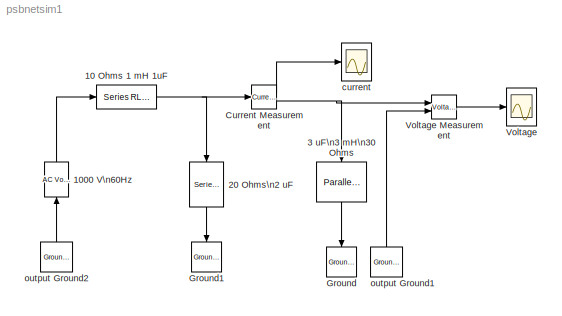
MODEL psbnetsim1
KIND model
BLOCK [Reference] 10 Ohms 1 mH 1uF  REF=powerlib2/Elements/Series RLC Branch
  PSBOutputType = 1
  Ports = [1, 1]
  SourceBlock = powerlib2/Elements/Series RLC Branch
  SourceType = Series RLC Branch
  Tag = PoWeRsYsTeMbLoCk
  a = 10
  b = 1e-03
  c = 1e-06
  mesure = None
BLOCK [Reference] 1000 V\n60Hz  REF=powerlib2/Electrical\nSources/AC Voltage Source
  A = 1000
  Description = source block
  F = 60
  P = 0
  PSBOutputType = 1
  Ports = [1, 1]
  SourceBlock = powerlib2/Electrical\nSources/AC Voltage Source
  SourceType = AC Voltage Source
  Tag = PoWeRsYsTeMbLoCk
  mesure = None
  stime = 0
BLOCK [Reference] 20 Ohms\n2 uF  REF=powerlib2/Elements/Series RLC Branch
  PSBOutputType = 1
  Ports = [1, 1]
  SourceBlock = powerlib2/Elements/Series RLC Branch
  SourceType = Series RLC Branch
  Tag = PoWeRsYsTeMbLoCk
  a = 20
  b = 0
  c = 2e-06
  mesure = None
BLOCK [Reference] 3 uF\n3 mH\n30 Ohms  REF=powerlib2/Elements/Parallel RLC Branch
  PSBOutputType = 1
  Ports = [1, 1]
  SourceBlock = powerlib2/Elements/Parallel RLC Branch
  SourceType = Parallel RLC Branch
  Tag = PoWeRsYsTeMbLoCk
  a = 30
  b = 3e-03
  c = 3e-06
  mesure = None
BLOCK [Reference] Current Measurement  REF=powerlib2/Measurements/Current Measurement
  OutputType = Magnitude
  PSBOutputType = 01
  PSBequivalent = 0
  PhasorSimulation = off
  Ports = [1, 2]
  SourceBlock = powerlib2/Measurements/Current Measurement
  SourceType = Current Measurement
  Tag = PoWeRsYsTeMmEaSuReMeNt
BLOCK [Reference] Ground  REF=powerlib2/Connectors/Ground (input)
  Ports = [1]
  SourceBlock = powerlib2/Connectors/Ground (input)
  SourceType = Ground
  Tag = PoWeRsYsTeMbLoCk
BLOCK [Reference] Ground1  REF=powerlib2/Connectors/Ground (input)
  Ports = [1]
  SourceBlock = powerlib2/Connectors/Ground (input)
  SourceType = Ground
  Tag = PoWeRsYsTeMbLoCk
BLOCK [Scope] Voltage
  DataFormat = Array
  MaxDataPoints = 100000
  NumInputPorts = 1
  Ports = [1]
  TickLabels = on
  YMax = 0.5
  YMin = -0.5
BLOCK [Reference] Voltage Measurement  REF=powerlib2/Measurements/Voltage Measurement
  OutputType = Magnitude
  PSBOutputType = 0
  PSBequivalent = 0
  PhasorSimulation = off
  Ports = [2, 1]
  SourceBlock = powerlib2/Measurements/Voltage Measurement
  SourceType = Voltage Measurement
  Tag = PoWeRsYsTeMmEaSuReMeNt
BLOCK [Scope] current
  DataFormat = Array
  MaxDataPoints = 100000
  NumInputPorts = 1
  Ports = [1]
  TickLabels = on
  YMax = 0.5
  YMin = -0.5
BLOCK [Reference] output Ground1  REF=powerlib2/Connectors/Ground (output)
  PSBOutputType = 1
  Ports = [0, 1]
  SourceBlock = powerlib2/Connectors/Ground (output)
  SourceType = Ground
  Tag = PoWeRsYsTeMbLoCk
BLOCK [Reference] output Ground2  REF=powerlib2/Connectors/Ground (output)
  PSBOutputType = 1
  Ports = [0, 1]
  SourceBlock = powerlib2/Connectors/Ground (output)
  SourceType = Ground
  Tag = PoWeRsYsTeMbLoCk
NET 10 Ohms 1 mH 1uF:1 -> 20 Ohms\n2 uF:1, Current Measurement:1
LINE 1000 V\n60Hz:1 -> 10 Ohms 1 mH 1uF:1
LINE 20 Ohms\n2 uF:1 -> Ground1:1
LINE 3 uF\n3 mH\n30 Ohms:1 -> Ground:1
LINE Current Measurement:1 -> current:1
NET Current Measurement:2 -> 3 uF\n3 mH\n30 Ohms:1, Voltage Measurement:1
LINE Voltage Measurement:1 -> Voltage:1
LINE output Ground1:1 -> Voltage Measurement:2
LINE output Ground2:1 -> 1000 V\n60Hz:1
note: NET lines group one-source signal fan-out (src -> all destinations, sorted); 1:1 wires keep LINE
